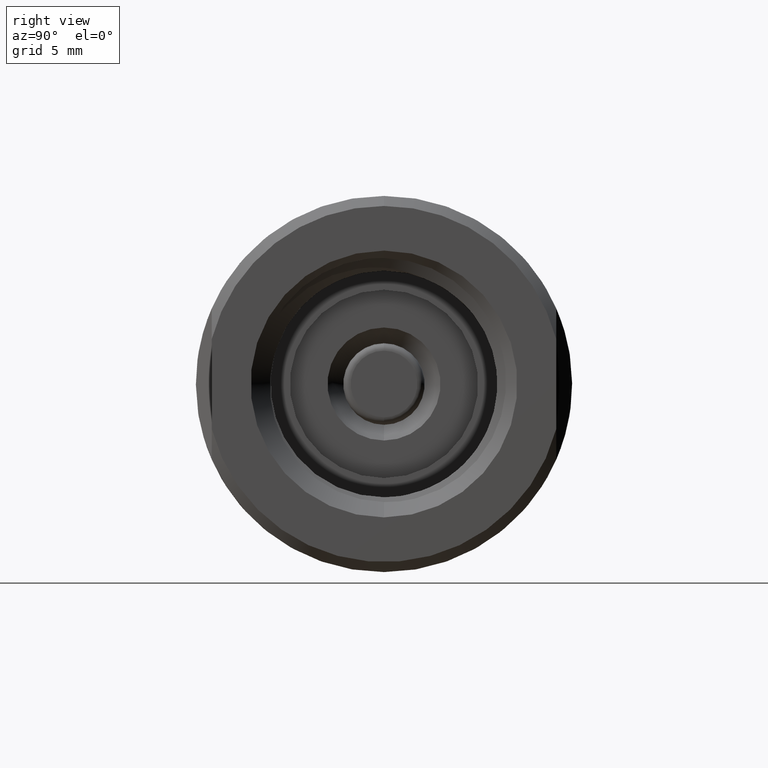
[diagram: clean part render]
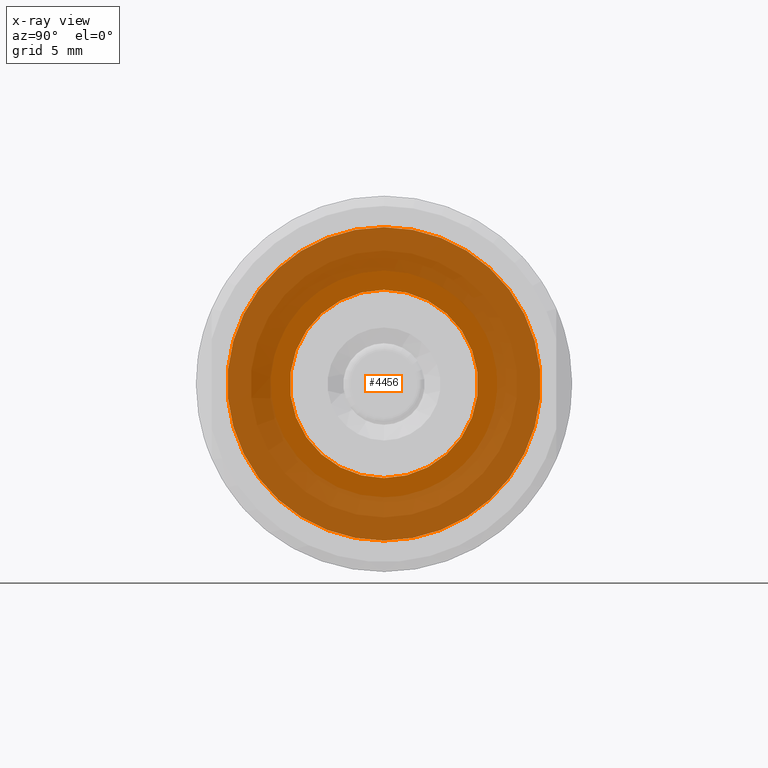
[diagram: x-ray — body ghosted, one internal face saturated and labeled with its STEP entity id]
A machine part, right view, then the same camera in x-ray: the body is ghosted and one INTERNAL B-rep face — a face not visible from any outside direction — is saturated and labeled: STEP entity #4456.
In plain terms, the highlighted planar face has unit normal (-1, 0, -0).
Its self-contained STEP definition (entity closure, byte-faithful):
#116 = CIRCLE ( 'NONE', #2737, 0.1875000000000000555 ) ;
#197 = DIRECTION ( 'NONE',  ( -1.000000000000000000, -0.0000000000000000000, -0.0000000000000000000 ) ) ;
#203 = DIRECTION ( 'NONE',  ( -1.000000000000000000, 0.0000000000000000000, -0.0000000000000000000 ) ) ;
#660 = EDGE_CURVE ( 'NONE', #9845, #2175, #8899, .T. ) ;
#706 = CARTESIAN_POINT ( 'NONE',  ( 0.2187500000000000278, 0.0000000000000000000, 0.0000000000000000000 ) ) ;
#1058 = EDGE_CURVE ( 'NONE', #2175, #9845, #116, .T. ) ;
#1083 = DIRECTION ( 'NONE',  ( 0.0000000000000000000, 0.0000000000000000000, 1.000000000000000000 ) ) ;
#1134 = CARTESIAN_POINT ( 'NONE',  ( 0.2187500000000000278, 0.0000000000000000000, 0.0000000000000000000 ) ) ;
#1374 = FACE_OUTER_BOUND ( 'NONE', #7958, .T. ) ;
#1858 = ORIENTED_EDGE ( 'NONE', *, *, #2312, .T. ) ;
#1931 = CARTESIAN_POINT ( 'NONE',  ( 0.2187500000000000278, 0.0000000000000000000, 0.1875000000000000555 ) ) ;
#2167 = DIRECTION ( 'NONE',  ( 0.0000000000000000000, 0.0000000000000000000, 1.000000000000000000 ) ) ;
#2175 = VERTEX_POINT ( 'NONE', #1931 ) ;
#2312 = EDGE_CURVE ( 'NONE', #11296, #3929, #10974, .T. ) ;
#2422 = DIRECTION ( 'NONE',  ( -1.000000000000000000, -0.0000000000000000000, -0.0000000000000000000 ) ) ;
#2468 = CARTESIAN_POINT ( 'NONE',  ( 0.2187500000000000278, 3.820898013339742790E-17, -0.3120000000000000551 ) ) ;
#2737 = AXIS2_PLACEMENT_3D ( 'NONE', #706, #8722, #6085 ) ;
#3014 = CARTESIAN_POINT ( 'NONE',  ( 0.2187500000000000278, 0.0000000000000000000, 0.0000000000000000000 ) ) ;
#3102 = CIRCLE ( 'NONE', #8144, 0.3120000000000000551 ) ;
#3104 = AXIS2_PLACEMENT_3D ( 'NONE', #8563, #2422, #10322 ) ;
#3705 = ORIENTED_EDGE ( 'NONE', *, *, #10356, .T. ) ;
#3781 = DIRECTION ( 'NONE',  ( -0.0000000000000000000, 0.0000000000000000000, 1.000000000000000000 ) ) ;
#3929 = VERTEX_POINT ( 'NONE', #5837 ) ;
#4188 = AXIS2_PLACEMENT_3D ( 'NONE', #3014, #203, #3781 ) ;
#4456 = ADVANCED_FACE ( 'NONE', ( #1374, #10980 ), #4936, .T. ) ;
#4906 = CARTESIAN_POINT ( 'NONE',  ( 0.2187500000000000278, 0.0000000000000000000, 0.0000000000000000000 ) ) ;
#4936 = PLANE ( 'NONE',  #4188 ) ;
#5739 = AXIS2_PLACEMENT_3D ( 'NONE', #4906, #6726, #2167 ) ;
#5837 = CARTESIAN_POINT ( 'NONE',  ( 0.2187500000000000278, 0.0000000000000000000, 0.3120000000000000551 ) ) ;
#6085 = DIRECTION ( 'NONE',  ( 0.0000000000000000000, 0.0000000000000000000, 1.000000000000000000 ) ) ;
#6493 = EDGE_LOOP ( 'NONE', ( #8955, #9818 ) ) ;
#6726 = DIRECTION ( 'NONE',  ( -1.000000000000000000, -0.0000000000000000000, -0.0000000000000000000 ) ) ;
#7958 = EDGE_LOOP ( 'NONE', ( #3705, #1858 ) ) ;
#8144 = AXIS2_PLACEMENT_3D ( 'NONE', #1134, #197, #1083 ) ;
#8563 = CARTESIAN_POINT ( 'NONE',  ( 0.2187500000000000278, 0.0000000000000000000, 0.0000000000000000000 ) ) ;
#8722 = DIRECTION ( 'NONE',  ( -1.000000000000000000, -0.0000000000000000000, -0.0000000000000000000 ) ) ;
#8899 = CIRCLE ( 'NONE', #3104, 0.1875000000000000555 ) ;
#8955 = ORIENTED_EDGE ( 'NONE', *, *, #1058, .F. ) ;
#9818 = ORIENTED_EDGE ( 'NONE', *, *, #660, .F. ) ;
#9845 = VERTEX_POINT ( 'NONE', #10921 ) ;
#10322 = DIRECTION ( 'NONE',  ( 0.0000000000000000000, 0.0000000000000000000, 1.000000000000000000 ) ) ;
#10356 = EDGE_CURVE ( 'NONE', #3929, #11296, #3102, .T. ) ;
#10921 = CARTESIAN_POINT ( 'NONE',  ( 0.2187500000000000278, 2.296212748401288342E-17, -0.1875000000000000555 ) ) ;
#10974 = CIRCLE ( 'NONE', #5739, 0.3120000000000000551 ) ;
#10980 = FACE_BOUND ( 'NONE', #6493, .T. ) ;
#11296 = VERTEX_POINT ( 'NONE', #2468 ) ;